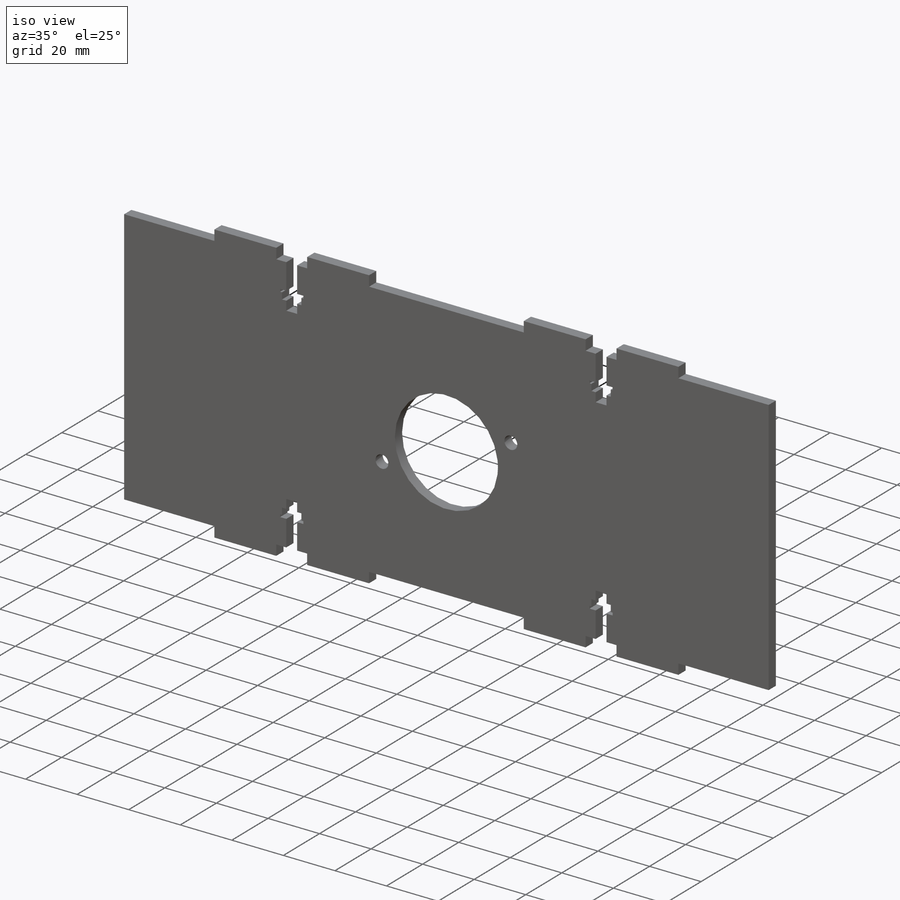
[diagram: iso view]
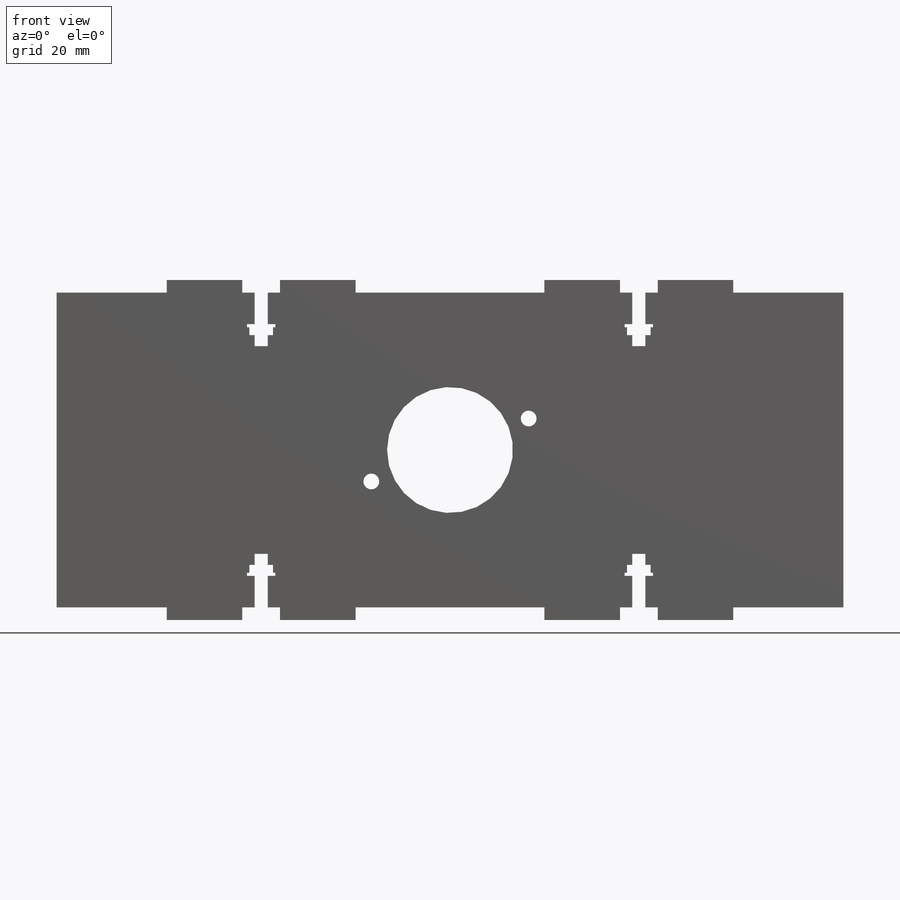
[diagram: front view]
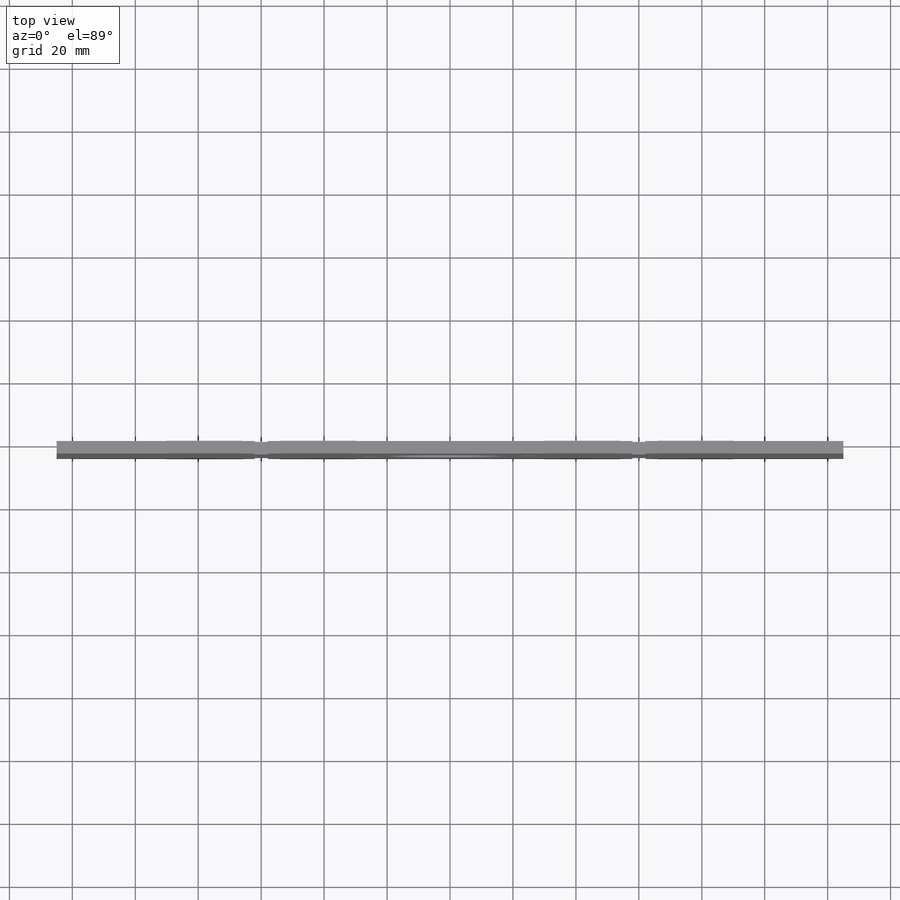
[diagram: top view]
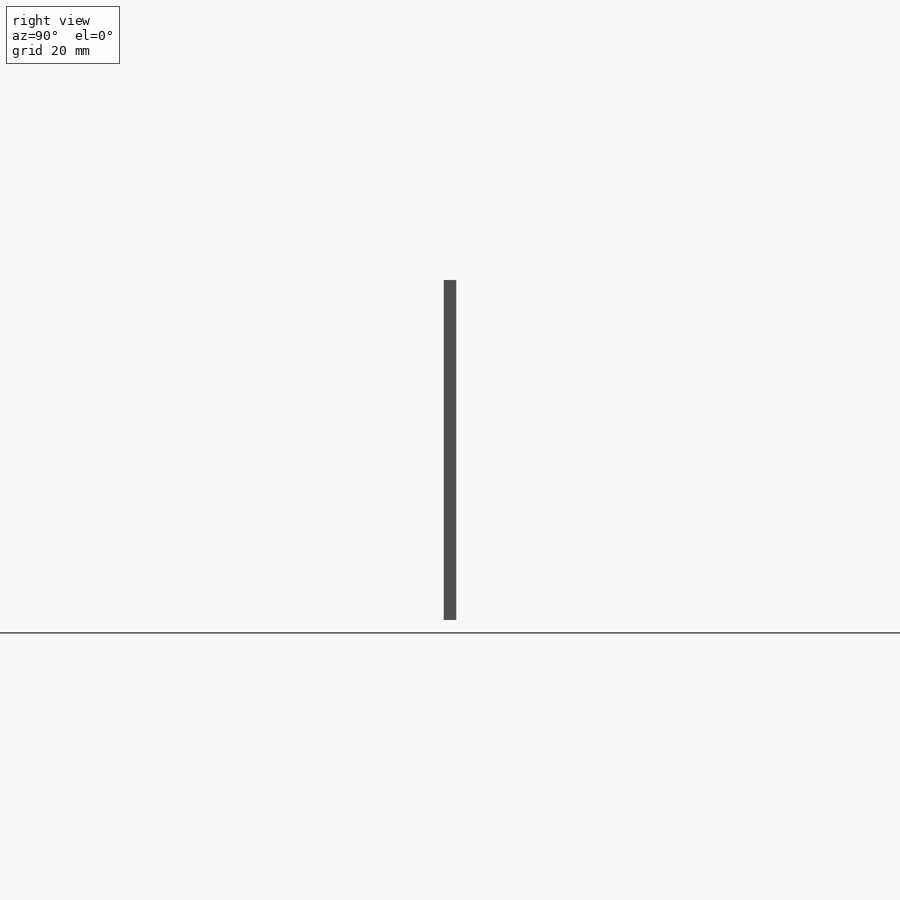
[diagram: right view]
SOLIDWORKS PART (.sldprt)
format: sldprt  version: not decoded by parser v0  size: 419,328 bytes
history: native  units: mm
features: sketch x4, extrude x2, cut_extrude x2, material x1, mirror x1 (+11 scaffold rows collapsed)
feature tree (21):
  scaffold x11  (default folders/planes/origin — collapsed)
  material  "Material <not specified>"
  sketch  "Sketch1"  dims[D1=250.0mm D2=100.0mm]
  extrude  "Boss-Extrude1"  Depth=4mm
  sketch  "Sketch2"  dims[c1.D1=60.0mm c1.D2=35.0mm c1.D3=12.0mm c1.D4=24.0mm c2.D2=35.0mm c2.D1=24.0mm]
  extrude  "Boss-Extrude2"  Depth=4mm
  mirror  "Mirror1"
  sketch  "Sketch3"  dims[c1.D1=4.2mm c1.D2=13.0mm c1.D3=7.0mm c1.D4=3.5mm c1.D5=7.0mm c2.D1=4.2mm c2.D2=17.0mm c2.D3=7.5mm c2.D4=2.5mm c2.D5=9.0mm c2.D6=1.0mm c2.D7=11.0mm]
  cut_extrude  "Cut-Extrude1"  Depth=10mm
  sketch  "Sketch4"  dims[D1=40.0mm D6=5.0mm D7=5.0mm D2=25.0mm D3=25.0mm D4=10.0mm D5=10.0mm]
  cut_extrude  "Cut-Extrude2"  Depth=10mm
decode coverage: 8 of 9 modeling features carry decoded parameters
note: suppression state not decoded; provenance and decode notes live in map.json
